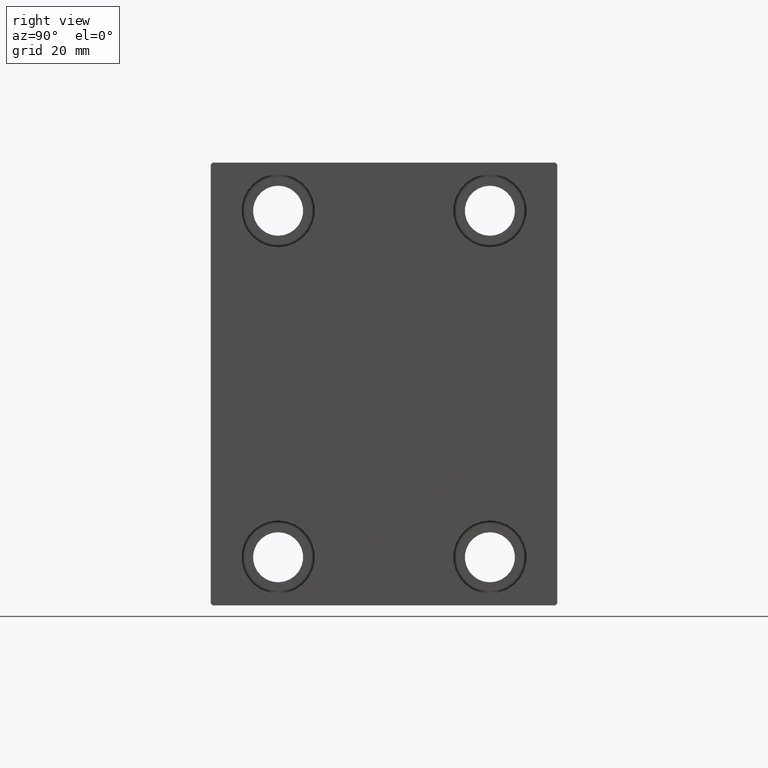
[diagram: clean part render]
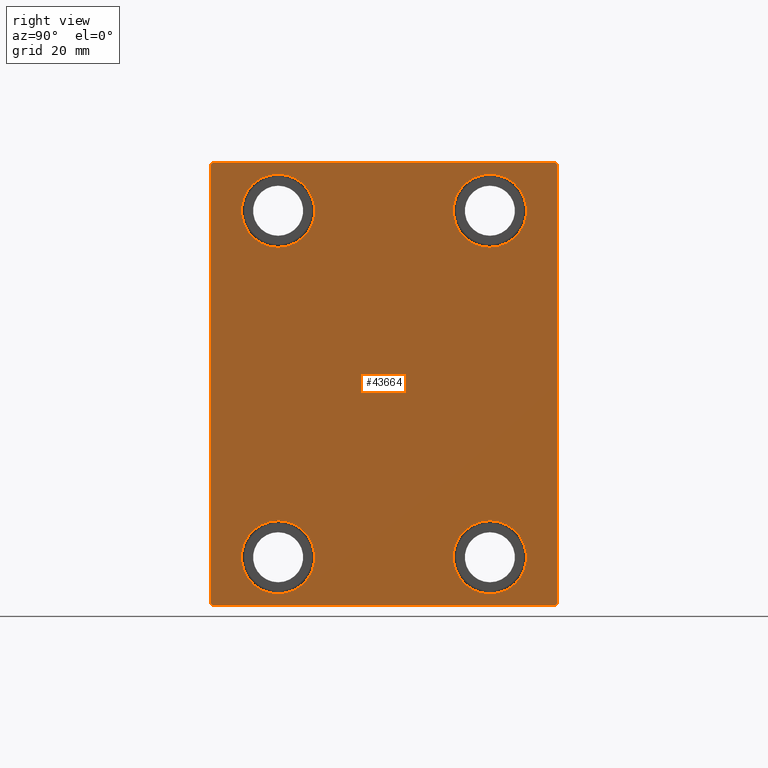
[diagram: same view with one face highlighted and labeled with its STEP entity id]
A machine part, right view. The second image highlights one B-rep face of the part: STEP entity #43664.
In plain terms, the highlighted planar face has unit normal (1, 0, 0).
Its self-contained STEP definition (entity closure, byte-faithful):
#125 = CARTESIAN_POINT ( 'NONE',  ( 108.0000000000000000, 27.50000000000001066, 45.00000000000000711 ) ) ;
#282 = CARTESIAN_POINT ( 'NONE',  ( 108.0000000000000000, 51.00000000000001421, 51.00000000000001421 ) ) ;
#362 = DIRECTION ( 'NONE',  ( -1.000000000000000000, -0.000000000000000000, -0.000000000000000000 ) ) ;
#416 = EDGE_CURVE ( 'NONE', #33621, #13525, #3322, .T. ) ;
#595 = CARTESIAN_POINT ( 'NONE',  ( 108.0000000000000000, -27.49999999999998934, 45.00000000000000711 ) ) ;
#609 = VERTEX_POINT ( 'NONE', #9698 ) ;
#954 = ORIENTED_EDGE ( 'NONE', *, *, #19090, .T. ) ;
#1585 = ORIENTED_EDGE ( 'NONE', *, *, #2646, .T. ) ;
#1612 = EDGE_CURVE ( 'NONE', #13525, #33621, #16930, .T. ) ;
#1933 = DIRECTION ( 'NONE',  ( 0.000000000000000000, 0.000000000000000000, 1.000000000000000000 ) ) ;
#2092 = AXIS2_PLACEMENT_3D ( 'NONE', #35059, #8080, #7646 ) ;
#2615 = EDGE_CURVE ( 'NONE', #8094, #8911, #43310, .T. ) ;
#2646 = EDGE_CURVE ( 'NONE', #30459, #41189, #19132, .T. ) ;
#2726 = CIRCLE ( 'NONE', #31231, 9.500000000000001776 ) ;
#3051 = LINE ( 'NONE', #37182, #40307 ) ;
#3248 = DIRECTION ( 'NONE',  ( 0.000000000000000000, -1.000000000000000000, -1.541976423090495387E-16 ) ) ;
#3322 = CIRCLE ( 'NONE', #19706, 9.500000000000001776 ) ;
#4294 = FACE_BOUND ( 'NONE', #23940, .T. ) ;
#4326 = DIRECTION ( 'NONE',  ( 0.000000000000000000, 0.000000000000000000, 1.000000000000000000 ) ) ;
#4357 = ORIENTED_EDGE ( 'NONE', *, *, #24685, .T. ) ;
#4605 = AXIS2_PLACEMENT_3D ( 'NONE', #125, #7043, #24228 ) ;
#4898 = VECTOR ( 'NONE', #44105, 1000.000000000000114 ) ;
#4946 = CARTESIAN_POINT ( 'NONE',  ( 108.0000000000000000, -27.50000000000000000, -54.49999999999998579 ) ) ;
#5071 = EDGE_CURVE ( 'NONE', #34434, #15875, #20274, .T. ) ;
#5401 = CIRCLE ( 'NONE', #8986, 9.500000000000001776 ) ;
#5537 = CIRCLE ( 'NONE', #40426, 9.500000000000001776 ) ;
#6479 = CARTESIAN_POINT ( 'NONE',  ( 108.0000000000000000, 51.00000000000001421, -51.00000000000001421 ) ) ;
#6845 = VECTOR ( 'NONE', #37075, 1000.000000000000000 ) ;
#7043 = DIRECTION ( 'NONE',  ( -1.000000000000000000, -0.000000000000000000, -0.000000000000000000 ) ) ;
#7206 = EDGE_LOOP ( 'NONE', ( #17227, #16430 ) ) ;
#7500 = DIRECTION ( 'NONE',  ( 0.000000000000000000, 0.000000000000000000, 1.000000000000000000 ) ) ;
#7646 = DIRECTION ( 'NONE',  ( 0.000000000000000000, 0.000000000000000000, -1.000000000000000000 ) ) ;
#7686 = DIRECTION ( 'NONE',  ( -1.000000000000000000, -0.000000000000000000, -0.000000000000000000 ) ) ;
#7902 = DIRECTION ( 'NONE',  ( -1.000000000000000000, -0.000000000000000000, -0.000000000000000000 ) ) ;
#8080 = DIRECTION ( 'NONE',  ( 1.000000000000000000, 0.000000000000000000, 0.000000000000000000 ) ) ;
#8094 = VERTEX_POINT ( 'NONE', #33115 ) ;
#8346 = CARTESIAN_POINT ( 'NONE',  ( 108.0000000000000000, -45.00000000000000000, 56.99999999999999289 ) ) ;
#8911 = VERTEX_POINT ( 'NONE', #15583 ) ;
#8986 = AXIS2_PLACEMENT_3D ( 'NONE', #19307, #42482, #18858 ) ;
#9431 = CARTESIAN_POINT ( 'NONE',  ( 108.0000000000000000, -45.00000000000000000, 57.49999999999999289 ) ) ;
#9698 = CARTESIAN_POINT ( 'NONE',  ( 108.0000000000000000, -27.49999999999998934, 35.50000000000000711 ) ) ;
#10172 = CARTESIAN_POINT ( 'NONE',  ( 108.0000000000000000, 45.00000000000000000, 57.50000000000000711 ) ) ;
#10843 = LINE ( 'NONE', #10172, #20991 ) ;
#11152 = CARTESIAN_POINT ( 'NONE',  ( 108.0000000000000000, -27.49999999999998934, 45.00000000000000711 ) ) ;
#11245 = DIRECTION ( 'NONE',  ( -1.000000000000000000, -0.000000000000000000, -0.000000000000000000 ) ) ;
#11464 = DIRECTION ( 'NONE',  ( 0.000000000000000000, 0.000000000000000000, 1.000000000000000000 ) ) ;
#11890 = EDGE_CURVE ( 'NONE', #35326, #14997, #28362, .T. ) ;
#13525 = VERTEX_POINT ( 'NONE', #21574 ) ;
#14007 = VECTOR ( 'NONE', #23040, 1000.000000000000000 ) ;
#14198 = CARTESIAN_POINT ( 'NONE',  ( 108.0000000000000000, -27.50000000000000000, -44.99999999999998579 ) ) ;
#14876 = ORIENTED_EDGE ( 'NONE', *, *, #35242, .T. ) ;
#14997 = VERTEX_POINT ( 'NONE', #17250 ) ;
#15022 = CARTESIAN_POINT ( 'NONE',  ( 108.0000000000000000, -27.50000000000000000, -44.99999999999998579 ) ) ;
#15583 = CARTESIAN_POINT ( 'NONE',  ( 108.0000000000000000, 27.50000000000001066, 35.50000000000000711 ) ) ;
#15853 = CARTESIAN_POINT ( 'NONE',  ( 108.0000000000000000, -44.50000000000002842, -57.50000000000000711 ) ) ;
#15875 = VERTEX_POINT ( 'NONE', #15853 ) ;
#16114 = CARTESIAN_POINT ( 'NONE',  ( 108.0000000000000000, 44.50000000000001421, -57.50000000000000711 ) ) ;
#16430 = ORIENTED_EDGE ( 'NONE', *, *, #40698, .T. ) ;
#16819 = ORIENTED_EDGE ( 'NONE', *, *, #33515, .T. ) ;
#16926 = CARTESIAN_POINT ( 'NONE',  ( 108.0000000000000000, -51.00000000000001421, -51.00000000000001421 ) ) ;
#16930 = CIRCLE ( 'NONE', #31874, 9.500000000000001776 ) ;
#17211 = VECTOR ( 'NONE', #41963, 1000.000000000000000 ) ;
#17227 = ORIENTED_EDGE ( 'NONE', *, *, #37737, .T. ) ;
#17250 = CARTESIAN_POINT ( 'NONE',  ( 108.0000000000000000, 45.00000000000000000, 57.00000000000000711 ) ) ;
#17469 = DIRECTION ( 'NONE',  ( -0.000000000000000000, -0.7071067811865474617, 0.7071067811865474617 ) ) ;
#17903 = CARTESIAN_POINT ( 'NONE',  ( 108.0000000000000000, 45.00000000000001421, -57.50000000000000711 ) ) ;
#17949 = CARTESIAN_POINT ( 'NONE',  ( 108.0000000000000000, 27.50000000000001066, 45.00000000000000711 ) ) ;
#18858 = DIRECTION ( 'NONE',  ( 0.000000000000000000, 0.000000000000000000, 1.000000000000000000 ) ) ;
#19090 = EDGE_CURVE ( 'NONE', #15875, #30842, #30371, .T. ) ;
#19132 = CIRCLE ( 'NONE', #41879, 9.500000000000001776 ) ;
#19162 = EDGE_LOOP ( 'NONE', ( #4357, #30826 ) ) ;
#19307 = CARTESIAN_POINT ( 'NONE',  ( 108.0000000000000000, 27.49999999999998934, -44.99999999999998579 ) ) ;
#19659 = DIRECTION ( 'NONE',  ( -0.000000000000000000, 0.7071067811865474617, 0.7071067811865474617 ) ) ;
#19706 = AXIS2_PLACEMENT_3D ( 'NONE', #14198, #362, #20893 ) ;
#20274 = LINE ( 'NONE', #16926, #4898 ) ;
#20893 = DIRECTION ( 'NONE',  ( 0.000000000000000000, 0.000000000000000000, 1.000000000000000000 ) ) ;
#20991 = VECTOR ( 'NONE', #3248, 1000.000000000000000 ) ;
#21574 = CARTESIAN_POINT ( 'NONE',  ( 108.0000000000000000, -27.50000000000000000, -35.49999999999998579 ) ) ;
#21883 = CARTESIAN_POINT ( 'NONE',  ( 108.0000000000000000, 27.49999999999998934, -35.49999999999998579 ) ) ;
#22918 = VERTEX_POINT ( 'NONE', #41141 ) ;
#23040 = DIRECTION ( 'NONE',  ( 0.000000000000000000, 0.000000000000000000, -1.000000000000000000 ) ) ;
#23210 = CARTESIAN_POINT ( 'NONE',  ( 108.0000000000000000, -27.49999999999998934, 54.50000000000000711 ) ) ;
#23248 = ORIENTED_EDGE ( 'NONE', *, *, #5071, .T. ) ;
#23376 = EDGE_CURVE ( 'NONE', #30842, #35326, #27433, .T. ) ;
#23480 = CARTESIAN_POINT ( 'NONE',  ( 108.0000000000000000, -45.00000000000000000, -57.50000000000000711 ) ) ;
#23940 = EDGE_LOOP ( 'NONE', ( #36036, #29636 ) ) ;
#24228 = DIRECTION ( 'NONE',  ( 0.000000000000000000, 0.000000000000000000, 1.000000000000000000 ) ) ;
#24577 = ORIENTED_EDGE ( 'NONE', *, *, #23376, .T. ) ;
#24679 = EDGE_CURVE ( 'NONE', #22918, #29534, #10843, .T. ) ;
#24685 = EDGE_CURVE ( 'NONE', #8911, #8094, #40897, .T. ) ;
#25036 = FACE_BOUND ( 'NONE', #19162, .T. ) ;
#25416 = ORIENTED_EDGE ( 'NONE', *, *, #24679, .T. ) ;
#25849 = ORIENTED_EDGE ( 'NONE', *, *, #27701, .T. ) ;
#26905 = EDGE_LOOP ( 'NONE', ( #1585, #35667 ) ) ;
#27356 = DIRECTION ( 'NONE',  ( 0.000000000000000000, -0.7071067811865474617, -0.7071067811865474617 ) ) ;
#27433 = LINE ( 'NONE', #6479, #38845 ) ;
#27701 = EDGE_CURVE ( 'NONE', #29534, #32596, #3051, .T. ) ;
#27727 = FACE_BOUND ( 'NONE', #7206, .T. ) ;
#27846 = EDGE_CURVE ( 'NONE', #41189, #30459, #5401, .T. ) ;
#28362 = LINE ( 'NONE', #17903, #17211 ) ;
#29534 = VERTEX_POINT ( 'NONE', #33606 ) ;
#29636 = ORIENTED_EDGE ( 'NONE', *, *, #1612, .T. ) ;
#30371 = LINE ( 'NONE', #23480, #6845 ) ;
#30396 = LINE ( 'NONE', #282, #39649 ) ;
#30459 = VERTEX_POINT ( 'NONE', #41452 ) ;
#30826 = ORIENTED_EDGE ( 'NONE', *, *, #2615, .T. ) ;
#30842 = VERTEX_POINT ( 'NONE', #16114 ) ;
#31231 = AXIS2_PLACEMENT_3D ( 'NONE', #595, #37393, #7500 ) ;
#31665 = EDGE_LOOP ( 'NONE', ( #25416, #25849, #14876, #23248, #954, #24577, #40980, #16819 ) ) ;
#31874 = AXIS2_PLACEMENT_3D ( 'NONE', #15022, #11245, #42439 ) ;
#32596 = VERTEX_POINT ( 'NONE', #8346 ) ;
#33115 = CARTESIAN_POINT ( 'NONE',  ( 108.0000000000000000, 27.50000000000001066, 54.50000000000000711 ) ) ;
#33515 = EDGE_CURVE ( 'NONE', #14997, #22918, #30396, .T. ) ;
#33606 = CARTESIAN_POINT ( 'NONE',  ( 108.0000000000000000, -44.49999999999997158, 57.49999999999999289 ) ) ;
#33621 = VERTEX_POINT ( 'NONE', #4946 ) ;
#34434 = VERTEX_POINT ( 'NONE', #37465 ) ;
#35059 = CARTESIAN_POINT ( 'NONE',  ( 108.0000000000000000, 0.000000000000000000, 0.000000000000000000 ) ) ;
#35242 = EDGE_CURVE ( 'NONE', #32596, #34434, #39982, .T. ) ;
#35326 = VERTEX_POINT ( 'NONE', #37495 ) ;
#35667 = ORIENTED_EDGE ( 'NONE', *, *, #27846, .T. ) ;
#36036 = ORIENTED_EDGE ( 'NONE', *, *, #416, .T. ) ;
#37075 = DIRECTION ( 'NONE',  ( 0.000000000000000000, 1.000000000000000000, 0.000000000000000000 ) ) ;
#37182 = CARTESIAN_POINT ( 'NONE',  ( 108.0000000000000000, -51.00000000000000000, 51.00000000000000000 ) ) ;
#37393 = DIRECTION ( 'NONE',  ( -1.000000000000000000, -0.000000000000000000, -0.000000000000000000 ) ) ;
#37465 = CARTESIAN_POINT ( 'NONE',  ( 108.0000000000000000, -45.00000000000000000, -57.00000000000003553 ) ) ;
#37495 = CARTESIAN_POINT ( 'NONE',  ( 108.0000000000000000, 45.00000000000001421, -57.00000000000003553 ) ) ;
#37737 = EDGE_CURVE ( 'NONE', #609, #41282, #5537, .T. ) ;
#37983 = FACE_BOUND ( 'NONE', #26905, .T. ) ;
#38137 = DIRECTION ( 'NONE',  ( -1.000000000000000000, -0.000000000000000000, -0.000000000000000000 ) ) ;
#38236 = CARTESIAN_POINT ( 'NONE',  ( 108.0000000000000000, 27.49999999999998934, -44.99999999999998579 ) ) ;
#38354 = AXIS2_PLACEMENT_3D ( 'NONE', #17949, #7902, #11464 ) ;
#38642 = PLANE ( 'NONE',  #2092 ) ;
#38845 = VECTOR ( 'NONE', #19659, 1000.000000000000114 ) ;
#39649 = VECTOR ( 'NONE', #17469, 1000.000000000000114 ) ;
#39982 = LINE ( 'NONE', #9431, #14007 ) ;
#40307 = VECTOR ( 'NONE', #27356, 1000.000000000000114 ) ;
#40426 = AXIS2_PLACEMENT_3D ( 'NONE', #11152, #38137, #1933 ) ;
#40698 = EDGE_CURVE ( 'NONE', #41282, #609, #2726, .T. ) ;
#40897 = CIRCLE ( 'NONE', #4605, 9.500000000000001776 ) ;
#40980 = ORIENTED_EDGE ( 'NONE', *, *, #11890, .T. ) ;
#41141 = CARTESIAN_POINT ( 'NONE',  ( 108.0000000000000000, 44.50000000000002842, 57.50000000000000711 ) ) ;
#41189 = VERTEX_POINT ( 'NONE', #21883 ) ;
#41282 = VERTEX_POINT ( 'NONE', #23210 ) ;
#41325 = FACE_OUTER_BOUND ( 'NONE', #31665, .T. ) ;
#41452 = CARTESIAN_POINT ( 'NONE',  ( 108.0000000000000000, 27.49999999999998934, -54.49999999999998579 ) ) ;
#41879 = AXIS2_PLACEMENT_3D ( 'NONE', #38236, #7686, #4326 ) ;
#41963 = DIRECTION ( 'NONE',  ( 0.000000000000000000, -1.206764157201257045E-16, 1.000000000000000000 ) ) ;
#42439 = DIRECTION ( 'NONE',  ( 0.000000000000000000, 0.000000000000000000, 1.000000000000000000 ) ) ;
#42482 = DIRECTION ( 'NONE',  ( -1.000000000000000000, -0.000000000000000000, -0.000000000000000000 ) ) ;
#43310 = CIRCLE ( 'NONE', #38354, 9.500000000000001776 ) ;
#43664 = ADVANCED_FACE ( 'NONE', ( #37983, #27727, #25036, #4294, #41325 ), #38642, .T. ) ;
#44105 = DIRECTION ( 'NONE',  ( -0.000000000000000000, 0.7071067811865474617, -0.7071067811865474617 ) ) ;